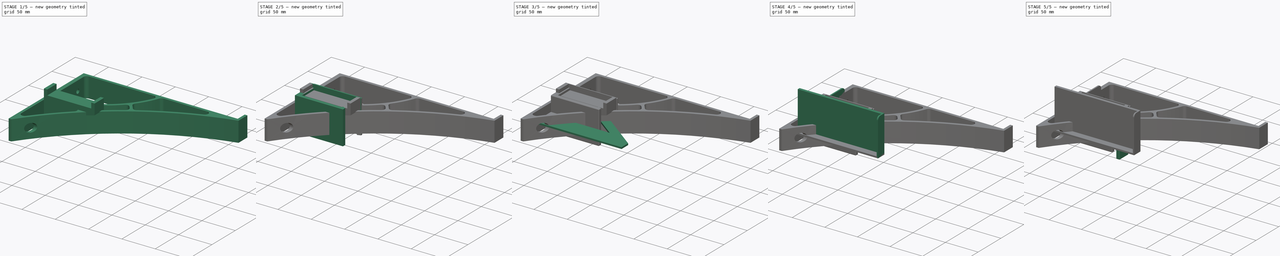
[diagram: build sequence overview — one tinted view per stage of 5, left to right]
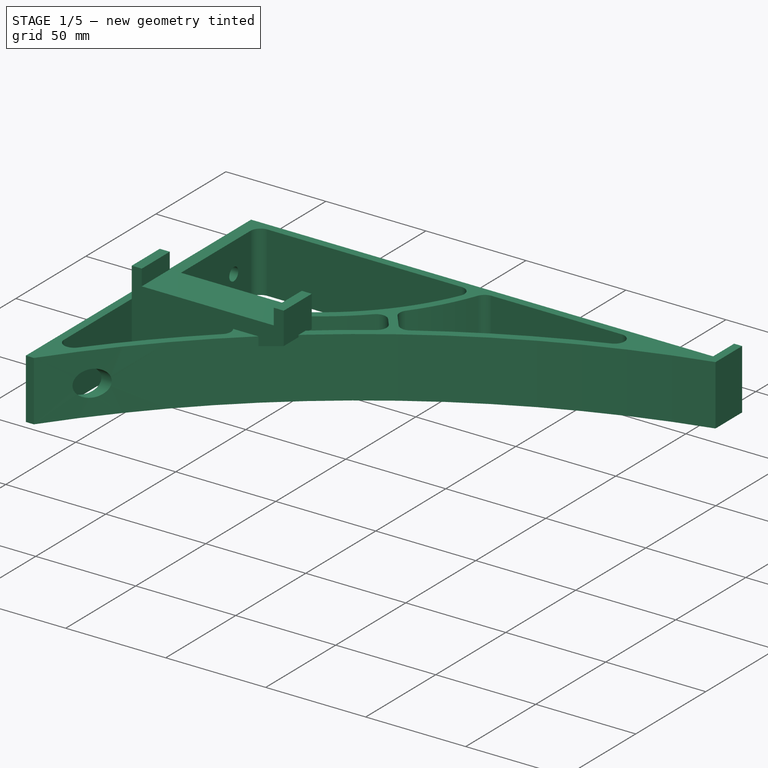
[diagram: stage 1 of 5 — iso view after this stage's code; geometry added in this stage tinted green]
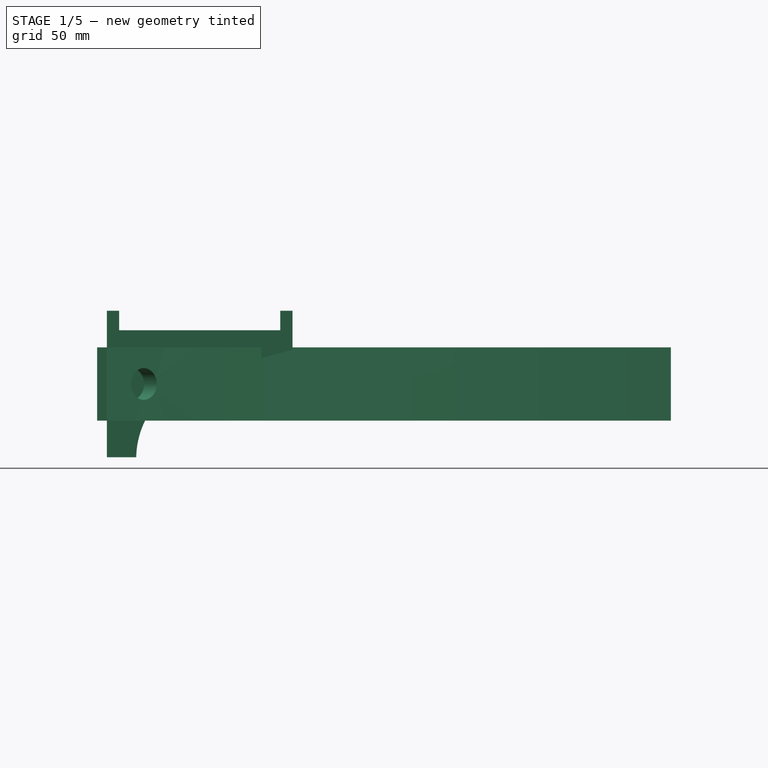
[diagram: stage 1 of 5 — front view after this stage's code; geometry added in this stage tinted green]
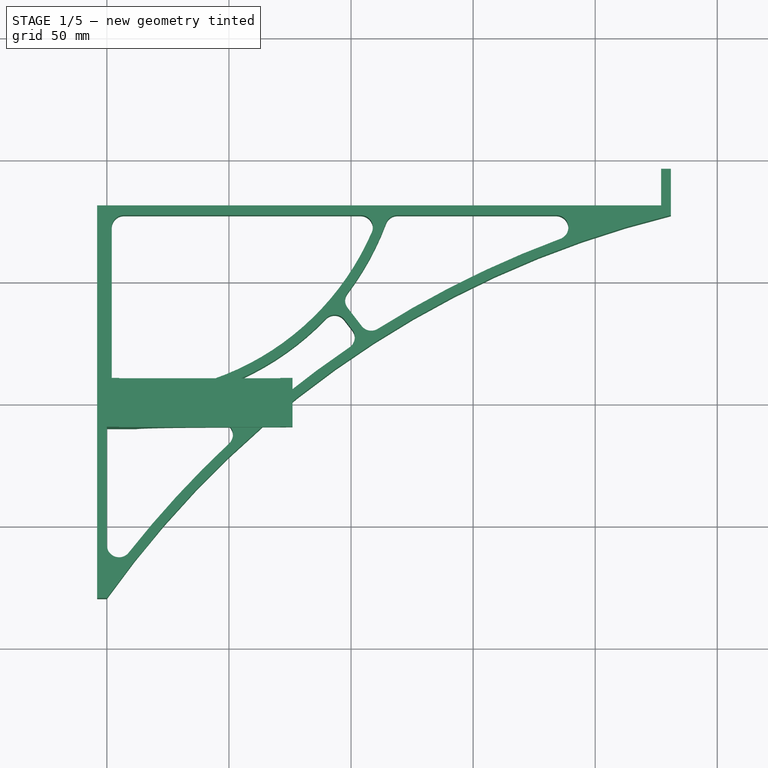
[diagram: stage 1 of 5 — top view after this stage's code; geometry added in this stage tinted green]
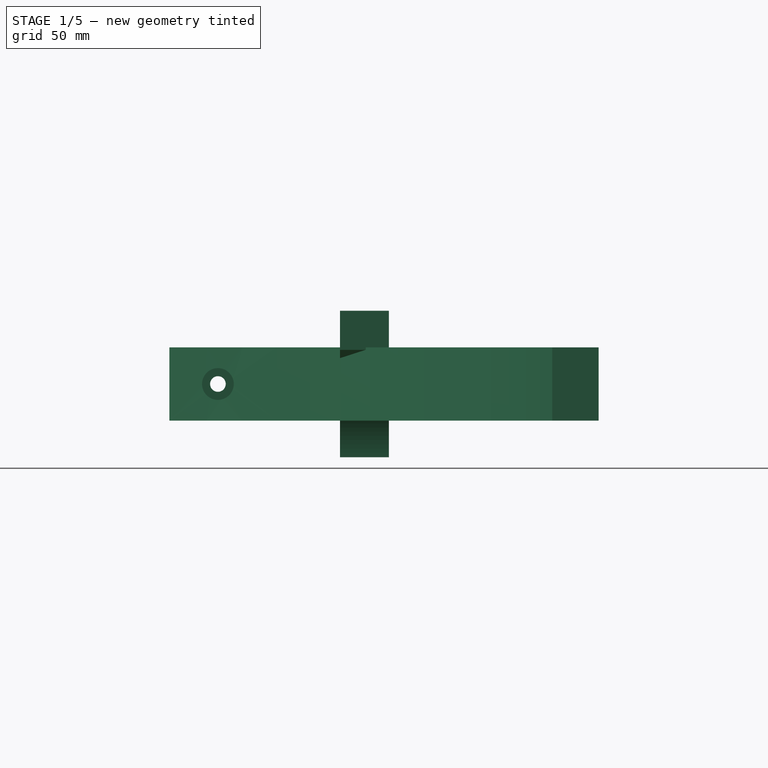
[diagram: stage 1 of 5 — right view after this stage's code; geometry added in this stage tinted green]
FCSTD DOCUMENT  (FreeCAD 0.19R24366 (Git))
Label: RouterHolder
License: All rights reserved
LicenseURL: http://en.wikipedia.org/wiki/All_rights_reserved
objects: Sketcher::SketchObject×18, PartDesign::Pocket×9, PartDesign::Pad×8, PartDesign::Body×6, PartDesign::Fillet×5, App::Part×3, PartDesign::Chamfer×1, PartDesign::FeatureBase×1, PartDesign::ShapeBinder×1, PartDesign::Plane×1
note: 73 computed .brp shape members not serialized (recipe doc carries the construction recipe); baked Part::Feature solids carry a one-line shape summary decoded from their .brp

FEATURE [Sketcher::SketchObject] Sketch
  FullyConstrained = true
  MapMode = 5
  Placement = pos=(0,0,0) rot=(1,0,0;1.5708rad)
  Support = -> [XZ_Plane001]
  sketch-geometry (11):
    g0: LineSegment StartX=5 StartY=30 StartZ=0 EndX=5 EndY=22 EndZ=0
    g1: LineSegment StartX=5 StartY=22 StartZ=0 EndX=71 EndY=22 EndZ=0
    g2: LineSegment StartX=71 StartY=22 StartZ=0 EndX=71 EndY=30 EndZ=0
    g3: LineSegment StartX=71 StartY=30 StartZ=0 EndX=76 EndY=30 EndZ=0
    g4: LineSegment StartX=76 StartY=30 StartZ=0 EndX=76 EndY=14 EndZ=0
    g5: LineSegment StartX=12 StartY=-30 StartZ=0 EndX=0 EndY=-30 EndZ=0
    g6: LineSegment StartX=0 StartY=-30 StartZ=0 EndX=0 EndY=30 EndZ=0
    g7: LineSegment StartX=0 StartY=30 StartZ=0 EndX=5 EndY=30 EndZ=0
    g8: LineSegment StartX=5 StartY=30 StartZ=0 EndX=71 EndY=30 EndZ=0
    g9: ArcOfCircle CenterX=47.9917 CenterY=-30.7748 CenterZ=0 NormalX=0 NormalY=0 NormalZ=1 AngleXU=0 Radius=36 StartAngle=1.8326 EndAngle=3.12007
    g10: LineSegment StartX=38.6742 StartY=3.99858 StartZ=0 EndX=76 EndY=14 EndZ=0
  constraints (31):
    c: Vertical(g0)
    c: Coincident(g0,g1)
    c: Horizontal(g1)
    c: Coincident(g1,g2)
    c: Vertical(g2)
    c: Coincident(g2,g3)
    c: Horizontal(g3)
    c: Coincident(g3,g4)
    c: Vertical(g4)
    c: Coincident(g5,g6)
    c: Vertical(g6)
    c: Coincident(g6,g7)
    c: Coincident(g7,g0)
    c: Horizontal(g7)
    c: DistanceX(g0,g2) = 66  'RouterThickness'
    c: DistanceX(g7,g7) = 5  'WallDistance'
    c: Coincident(g8,g0)
    c: Coincident(g8,g2)
    c: Horizontal(g8)
    c: Coincident(g9,g5)
    c: Coincident(g10,g4)
    c: Tangent(g9,g10) = 1.5708
    c: Horizontal(g5)
    c: DistanceX(g5,g5) = 12
    c: Radius(g9) = 36
    c: DistanceY(g6,g6) = 60
    c: DistanceY(g0,g0) = 8
    c: DistanceY(g4,g1) = 8
    c: Equal(g3,g7)
    c: Angle(g1,g10) = 0.261799
    c: Symmetric(g6,g5,g-1)  '__ANCHOR__'
FEATURE [PartDesign::Pad] Pad
  AllowMultiFace = false
  Direction = (1,1,1)
  Length = 20
  Length2 = 100
  Midplane = true
  Placement = pos=(0,0,0) rot=(1,0,0;1.5708rad)
  Profile = -> Sketch
  Type = 0
FEATURE [PartDesign::Body] Body005  label="RouterHolderBottomRear"
  BaseFeature = -> Pocket001
  Group = -> [Clone,ShapeBinder,DatumPlane,Sketch014,Pad006]
  Origin = -> Origin008
  Placement = pos=(0,-45,0) rot=(0,0,1;0rad)
  Tip = -> Pad006
FEATURE [App::Part] Part  label="RouterHolder"
  Group = -> [Body,Body001,Body004,Body005]
  Origin = -> Origin
FEATURE [Sketcher::SketchObject] Sketch015
  FullyConstrained = true
  MapMode = 5
  Support = -> [XY_Plane006]
  sketch-geometry (39):
    g0: LineSegment StartX=-5.68e-14 StartY=-73.0555 StartZ=0 EndX=-5.68e-14 EndY=8.527e-13 EndZ=0
    g1: LineSegment StartX=2 StartY=76.9445 StartZ=0 EndX=111.265 EndY=76.9445 EndZ=0
    g2: LineSegment StartX=231 StartY=76.9445 StartZ=0 EndX=231 EndY=80.9445 EndZ=0
    g3: LineSegment StartX=227 StartY=80.9445 StartZ=0 EndX=-4 EndY=80.9445 EndZ=0
    g4: LineSegment StartX=-4 StartY=80.9445 StartZ=0 EndX=-4 EndY=-79.8945 EndZ=0
    g5: LineSegment StartX=-4 StartY=-79.8945 StartZ=0 EndX=-5.68e-14 EndY=-79.8945 EndZ=0
    g6: ArcOfCircle CenterX=326.059 CenterY=-311.596 CenterZ=0 NormalX=0 NormalY=0 NormalZ=1 AngleXU=0 Radius=400 StartAngle=1.81074 EndAngle=2.52378
    g7: ArcOfCircle CenterX=326.059 CenterY=-311.596 CenterZ=0 NormalX=0 NormalY=0 NormalZ=1 AngleXU=0 Radius=404 StartAngle=1.84833 EndAngle=2.14353
    g8: LineSegment StartX=215.369 StartY=76.9445 StartZ=0 EndX=231 EndY=76.9445 EndZ=0
    g9: LineSegment StartX=-5.68e-14 StartY=-73.0555 StartZ=0 EndX=-5.68e-14 EndY=-79.8945 EndZ=0
    g10: LineSegment StartX=115.5 StartY=76.9445 StartZ=0 EndX=215.369 EndY=76.9445 EndZ=0
    g11: LineSegment StartX=2 StartY=3.88897 StartZ=0 EndX=2 EndY=76.9445 EndZ=0
    g12: LineSegment StartX=-5.68e-14 StartY=-73.0555 StartZ=0 EndX=3.22831 EndY=-75.4173 EndZ=0
    g13: LineSegment StartX=93.6024 StartY=38.9117 StartZ=0 EndX=103.756 EndY=25.7427 EndZ=0
    g14: LineSegment StartX=96.2347 StartY=42.0486 StartZ=0 EndX=107.117 EndY=27.9339 EndZ=0
    g15: LineSegment StartX=43.6929 StartY=5.60939 StartZ=0 EndX=56.3509 EndY=-10.8078 EndZ=0
    g16: LineSegment StartX=39.6242 StartY=4.33554 StartZ=0 EndX=53.3768 EndY=-13.5013 EndZ=0
    g17: LineSegment StartX=43.6929 StartY=5.60939 StartZ=0 EndX=40.5252 EndY=3.16698 EndZ=0
    g18: LineSegment StartX=93.6024 StartY=38.9117 StartZ=0 EndX=96.7702 EndY=41.3541 EndZ=0
    g19: ArcOfCircle CenterX=326.059 CenterY=-311.596 CenterZ=0 NormalX=0 NormalY=0 NormalZ=1 AngleXU=0 Radius=404 StartAngle=2.3117 EndAngle=2.50998
    g20: ArcOfCircle CenterX=326.059 CenterY=-311.596 CenterZ=0 NormalX=0 NormalY=0 NormalZ=1 AngleXU=0 Radius=404 StartAngle=2.15347 EndAngle=2.30177
    g21: ArcOfCircle CenterX=326.059 CenterY=-311.596 CenterZ=0 NormalX=0 NormalY=0 NormalZ=1 AngleXU=0 Radius=404 StartAngle=2.30177 EndAngle=2.3117
    g22: ArcOfCircle CenterX=326.059 CenterY=-311.596 CenterZ=0 NormalX=0 NormalY=0 NormalZ=1 AngleXU=0 Radius=404 StartAngle=2.14353 EndAngle=2.15347
    g23: ArcOfCircle CenterX=7.60358 CenterY=113.746 CenterZ=0 NormalX=0 NormalY=0 NormalZ=1 AngleXU=0 Radius=114 StartAngle=4.64564 EndAngle=4.9971
    g24: ArcOfCircle CenterX=7.60358 CenterY=113.746 CenterZ=0 NormalX=0 NormalY=0 NormalZ=1 AngleXU=0 Radius=114 StartAngle=4.9971 EndAngle=5.0345
    g25: ArcOfCircle CenterX=7.60358 CenterY=113.746 CenterZ=0 NormalX=0 NormalY=0 NormalZ=1 AngleXU=0 Radius=114 StartAngle=5.0345 EndAngle=5.56709
    g26: ArcOfCircle CenterX=7.60358 CenterY=113.746 CenterZ=0 NormalX=0 NormalY=0 NormalZ=1 AngleXU=0 Radius=114 StartAngle=5.56709 EndAngle=5.60301
    g27: ArcOfCircle CenterX=7.60358 CenterY=113.746 CenterZ=0 NormalX=0 NormalY=0 NormalZ=1 AngleXU=0 Radius=114 StartAngle=5.60301 EndAngle=5.95448
    g28: LineSegment StartX=111.265 StartY=76.9445 StartZ=0 EndX=115.5 EndY=76.9445 EndZ=0
    g29: ArcOfCircle CenterX=7.60358 CenterY=113.746 CenterZ=0 NormalX=0 NormalY=0 NormalZ=1 AngleXU=0 Radius=110 StartAngle=4.66143 EndAngle=5.94205
    g30: LineSegment StartX=93.6024 StartY=38.9117 StartZ=0 EndX=90.5849 EndY=41.5374 EndZ=0
    g31: LineSegment StartX=227 StartY=80.9445 StartZ=0 EndX=231 EndY=80.9445 EndZ=0
    g32: LineSegment StartX=227 StartY=80.9445 StartZ=0 EndX=227 EndY=95.9445 EndZ=0
    g33: LineSegment StartX=227 StartY=95.9445 StartZ=0 EndX=231 EndY=95.9445 EndZ=0
    g34: LineSegment StartX=231 StartY=95.9445 StartZ=0 EndX=231 EndY=80.9445 EndZ=0
    g35: LineSegment StartX=81.818 StartY=5.17889 StartZ=0 EndX=326.059 EndY=-311.596 EndZ=0
    g36: LineSegment StartX=-5.68e-14 StartY=8.527e-13 StartZ=0 EndX=39.6242 EndY=4.33554 EndZ=0
    g37: LineSegment StartX=115.5 StartY=76.9445 StartZ=0 EndX=96.2347 EndY=42.0486 EndZ=0
    g38: LineSegment StartX=2 StartY=76.9445 StartZ=0 EndX=0 EndY=76.9445 EndZ=0
  constraints (106):
    c: Vertical(g0)
    c: Coincident(g11,g1)
    c: Horizontal(g1)
    c: Vertical(g2)
    c: Horizontal(g3)
    c: Vertical(g4)
    c: Horizontal(g5)
    c: Equal(g5,g2)
    c: Coincident(g6,g5)
    c: Coincident(g6,g2)
    c: Radius(g6) = 400
    c: Coincident(g7,g6)
    c: Coincident(g10,g7)
    c: Coincident(g0,g19)
    c: Coincident(g8,g10)
    c: Coincident(g8,g2)
    c: Coincident(g9,g0)
    c: Coincident(g9,g5)
    c: Vertical(g9)
    c: Tangent(g1,g10)
    c: Coincident(g3,g4)
    c: Coincident(g12,g0)
    c: PointOnObject(g12,g6)
    c: PointOnObject(g6,g12)
    c: Parallel(g13,g14)
    c: Parallel(g16,g15)
    c: PointOnObject(g17,g16)
    c: Perpendicular(g16,g17)
    c: Equal(g17,g12)
    c: Distance(g17,g13) = 60
    c: Coincident(g15,g17)
    c: PointOnObject(g20,g15)
    c: Coincident(g19,g16)
    c: Coincident(g7,g19)
    c: Coincident(g7,g14)
    c: Coincident(g20,g13)
    c: Coincident(g7,g20)
    c: Coincident(g21,g6)
    c: Coincident(g21,g16)
    c: Coincident(g21,g15)
    c: Coincident(g22,g6)
    c: Coincident(g22,g13)
    c: Coincident(g22,g7)
    c: Coincident(g23,g16)
    c: Coincident(g24,g23)
    c: Coincident(g24,g15)
    c: Coincident(g24,g16)
    c: Coincident(g25,g13)
    c: Coincident(g23,g25)
    c: Coincident(g26,g23)
    c: Coincident(g26,g13)
    c: Coincident(g26,g14)
    c: Coincident(g27,g14)
    c: Coincident(g27,g10)
    c: Coincident(g0,g23)
    c: Coincident(g28,g1)
    c: Coincident(g28,g10)
    c: Equal(g12,g5)
    c: Coincident(g29,g23)
    c: Coincident(g29,g11)
    c: Coincident(g29,g1)
    c: Coincident(g30,g13)
    c: PointOnObject(g30,g29)
    c: PointOnObject(g23,g30)
    c: Equal(g12,g30)
    c: Coincident(g15,g25)
    c: Coincident(g23,g27)
    c: DistanceX(g3,g3) = 231
    c: Coincident(g5,g4)
    c: Coincident(g31,g3)
    c: Horizontal(g31)
    c: Coincident(g2,g31)
    c: Equal(g31,g2)
    c: Coincident(g3,g32)
    c: Vertical(g32)
    c: Coincident(g32,g33)
    c: Horizontal(g33)
    c: Coincident(g33,g34)
    c: Coincident(g34,g2)
    c: Vertical(g34)
    c: DistanceY(g2,g2) = 4  'Thickness'
    c: DistanceY(g34,g34) = 15
    c: Parallel(g15,g13)
    c: PointOnObject(g35,g6)
    c: Coincident(g35,g6)
    c: Parallel(g35,g15)
    c: Symmetric(g15,g13,g35)
    c: Radius(g29) = 110
    c: Coincident(g36,g0)
    c: Coincident(g36,g16)
    c: Coincident(g37,g10)
    c: Coincident(g37,g14)
    c: Equal(g37,g36)
    c: DistanceY(g0,g1) = 150  'InnerHeight'
    c: Coincident(g0,g-1)  '__ANCHOR__'
    c: Equal(g0,g11)
    c: DistanceX(g3,g1) = 6
    c: Vertical(g11)
    c: Coincident(g38,g1)
    c: PointOnObject(g38,g0)
    c: Horizontal(g38)
    c: Symmetric(g38,g2,g10)
    c: Coincident(g18,g13)
    c: PointOnObject(g18,g14)
    c: Perpendicular(g14,g18)
    c: Equal(g18,g17)
FEATURE [PartDesign::Pad] Pad007
  AllowMultiFace = false
  Direction = (1,1,1)
  Length = 30
  Length2 = 100
  Midplane = true
  Profile = -> Sketch015
  Type = 0
FEATURE [Sketcher::SketchObject] Sketch016
  AttachmentOffset = pos=(0,0,5) rot=(0,0,1;0rad)
  FullyConstrained = true
  MapMode = 5
  Placement = pos=(5,-1.1e-15,1.1e-15) rot=(0.57735,0.57735,0.57735;2.0944rad)
  Support = -> [YZ_Plane006]
  expr: Constraints[4] = Sketch015.Constraints.InnerHeight - 30mm
  sketch-geometry (2):
    g0: Circle CenterX=-60 CenterY=0 CenterZ=0 NormalX=0 NormalY=0 NormalZ=1 AngleXU=0 Radius=3.2
    g1: Circle CenterX=60 CenterY=0 CenterZ=0 NormalX=0 NormalY=0 NormalZ=1 AngleXU=0 Radius=3.2
  constraints (5):
    c: PointOnObject(g0,g-1)
    c: Equal(g1,g0)
    c: Radius(g0) = 3.2
    c: Symmetric(g0,g1,g-1)
    c: DistanceX(g0,g1) = 120
FEATURE [Sketcher::SketchObject] Sketch017
  ExternalGeometry = -> [Sketch016]
  FullyConstrained = true
  MapMode = 5
  Placement = pos=(0,0,0) rot=(0.57735,0.57735,0.57735;2.0944rad)
  Support = -> [YZ_Plane006]
  sketch-geometry (1):
    g0: Circle CenterX=-60 CenterY=0 CenterZ=0 NormalX=0 NormalY=0 NormalZ=1 AngleXU=0 Radius=6.5
  constraints (2):
    c: Coincident(g0,g-3)
    c: Radius(g0) = 6.5
FEATURE [PartDesign::Fillet] Fillet004
  Base = -> Pad007 [Edge26,Edge29,Edge41,Edge25,Edge47,Edge58,Edge50,Edge38,Edge59,Edge34,Edge46,Edge53,Edge65,Edge62,Edge35]
  BaseFeature = -> Pad007
  Radius = 5
  SupportTransform = false
FEATURE [PartDesign::Pocket] Pocket007
  AllowMultiFace = false
  BaseFeature = -> Fillet004
  Length = 5
  Length2 = 100
  Profile = -> Sketch016
  Type = 1
FEATURE [PartDesign::Pocket] Pocket008
  AllowMultiFace = false
  BaseFeature = -> Pocket007
  Length = 5
  Length2 = 100
  Profile = -> Sketch017
  Refine = true
  Reversed = true
  Type = 1
FEATURE [PartDesign::Body] Body003  label="HPHolder"
  Group = -> [Sketch015,Pad007,Fillet004,Sketch016,Pocket007,Sketch017,Pocket008]
  Origin = -> Origin006
  Tip = -> Pocket008
FEATURE [App::Part] Part002  label="HPHolder_"
  Group = -> [Body003]
  Origin = -> Origin005
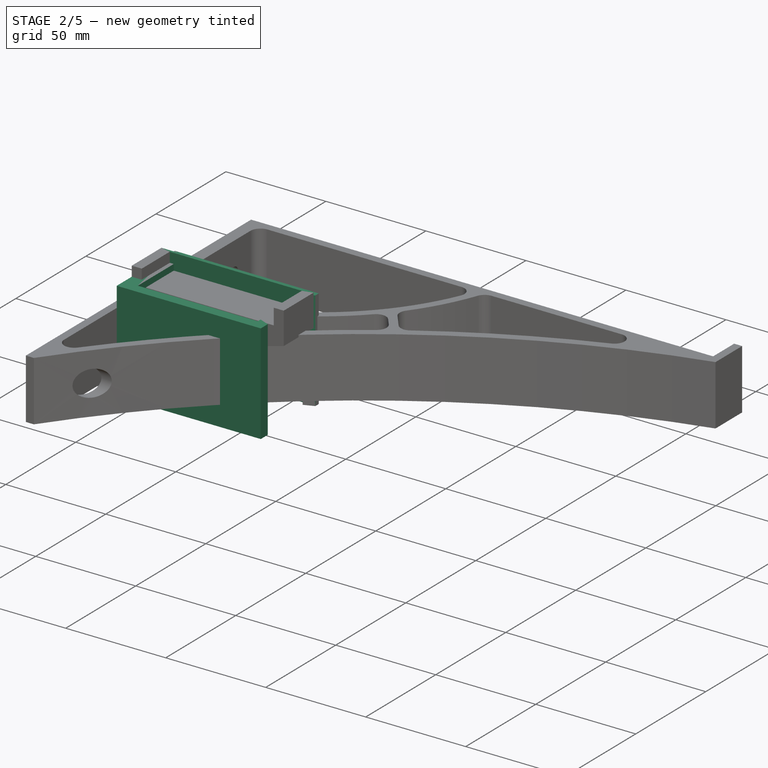
[diagram: stage 2 of 5 — iso view after this stage's code; geometry added in this stage tinted green]
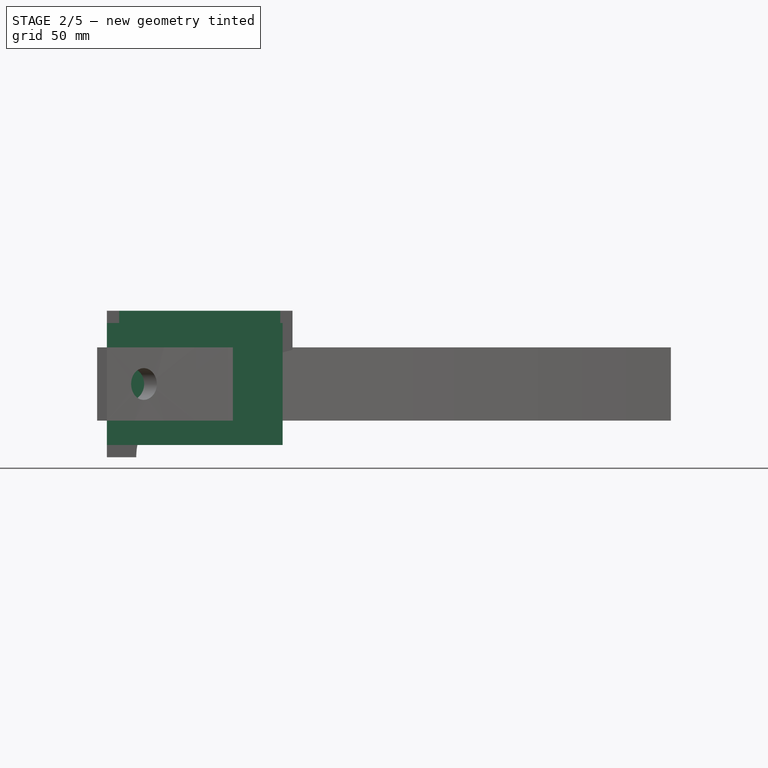
[diagram: stage 2 of 5 — front view after this stage's code; geometry added in this stage tinted green]
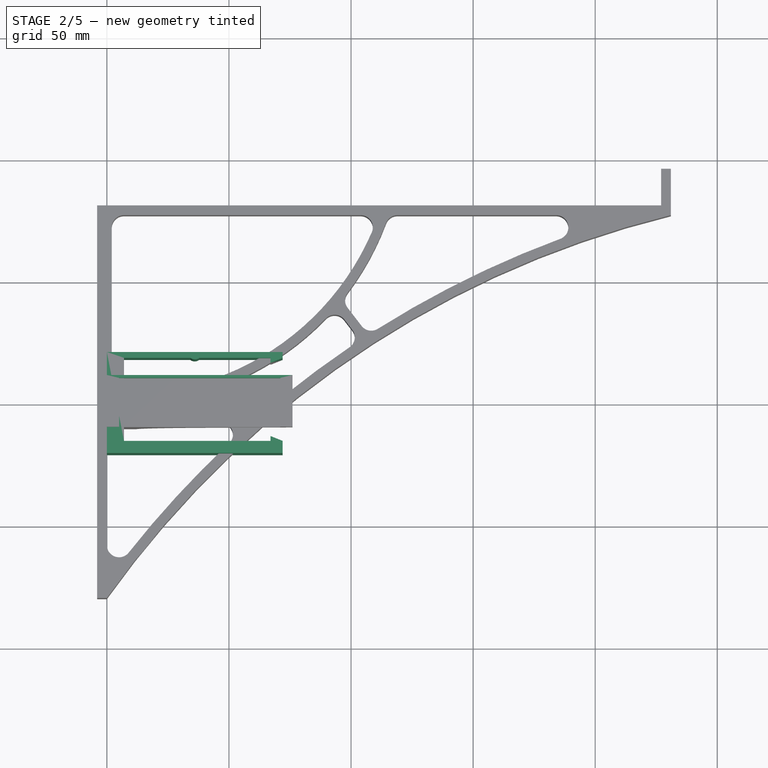
[diagram: stage 2 of 5 — top view after this stage's code; geometry added in this stage tinted green]
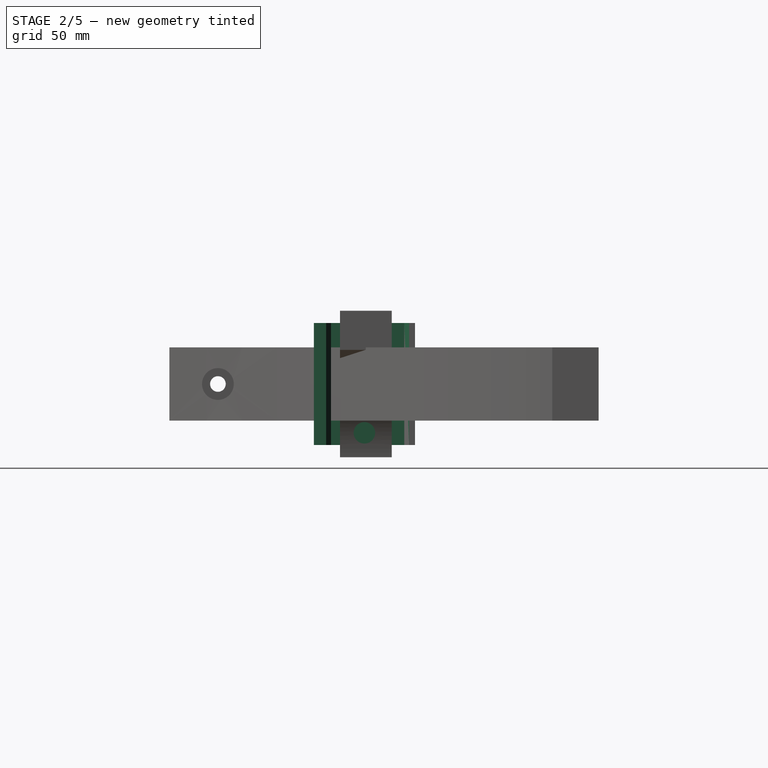
[diagram: stage 2 of 5 — right view after this stage's code; geometry added in this stage tinted green]
FEATURE [Sketcher::SketchObject] Sketch001
  ExternalGeometry = -> [Sketch]
  FullyConstrained = true
  MapMode = 5
  Placement = pos=(0,0,0) rot=(0.57735,0.57735,0.57735;2.0944rad)
  Support = -> [YZ_Plane001]
  sketch-geometry (3):
    g0: Circle CenterX=8.9e-15 CenterY=3.99858 CenterZ=0 NormalX=0 NormalY=0 NormalZ=1 AngleXU=0 Radius=2.2
    g1: LineSegment StartX=6.7e-15 StartY=-30 StartZ=0 EndX=4.4e-15 EndY=-19.9986 EndZ=0
    g2: Circle CenterX=4.4e-15 CenterY=-19.9986 CenterZ=0 NormalX=0 NormalY=0 NormalZ=1 AngleXU=0 Radius=2.2
  constraints (8):
    c: Radius(g0) = 2.2  'ScrewHole'
    c: Coincident(g0,g-3)
    c: Coincident(g1,g-4)
    c: PointOnObject(g1,g-4)
    c: Equal(g1,g-3)
    c: Coincident(g2,g1)
    c: Equal(g2,g0)
    c: DistanceY(g2,g0) = 23.9972
FEATURE [PartDesign::Pocket] Pocket
  AllowMultiFace = false
  BaseFeature = -> Pad
  Length = 5
  Length2 = 100
  Placement = pos=(0,0,0) rot=(1,0,0;1.5708rad)
  Profile = -> Sketch001
  Reversed = true
  Type = 1
FEATURE [Sketcher::SketchObject] Sketch002
  AttachmentOffset = pos=(0,0,4) rot=(0,0,1;0rad)
  ExternalGeometry = -> [Sketch001]
  FullyConstrained = true
  MapMode = 5
  Placement = pos=(4,-9e-16,9e-16) rot=(0.57735,0.57735,0.57735;2.0944rad)
  Support = -> [YZ_Plane001]
  sketch-geometry (2):
    g0: Circle CenterX=8.9e-15 CenterY=3.99858 CenterZ=0 NormalX=0 NormalY=0 NormalZ=1 AngleXU=0 Radius=4.4
    g1: Circle CenterX=0 CenterY=-19.9986 CenterZ=0 NormalX=0 NormalY=0 NormalZ=1 AngleXU=0 Radius=4.4
  constraints (4):
    c: Radius(g0) = 4.4  'HeadHole'
    c: Equal(g1,g0)
    c: Coincident(g0,g-3)
    c: Coincident(g1,g-4)
FEATURE [PartDesign::Pocket] Pocket001
  AllowMultiFace = false
  BaseFeature = -> Pocket
  Length = 5
  Length2 = 100
  Placement = pos=(0,0,0) rot=(1,0,0;1.5708rad)
  Profile = -> Sketch002
  Reversed = true
  Type = 1
FEATURE [PartDesign::Body] Body002
  Group = -> [Sketch006,Sketch007,Pad002,Sketch008,Pad003,Sketch009,Pad004,Chamfer,Sketch010,Pocket004,Fillet002]
  Origin = -> Origin004
  Tip = -> Pad004
FEATURE [App::Part] Part001  label="NASHolder"
  Group = -> [Body002]
  Origin = -> Origin003
FEATURE [Sketcher::SketchObject] Sketch011
  FullyConstrained = true
  MapMode = 5
  Support = -> [XY_Plane007]
  sketch-geometry (18):
    g0: LineSegment StartX=7 StartY=18.3 StartZ=0 EndX=34.2 EndY=18.3 EndZ=0
    g1: LineSegment StartX=67 StartY=-15.7 StartZ=0 EndX=7 EndY=-15.7 EndZ=0
    g2: LineSegment StartX=7 StartY=-15.7 StartZ=0 EndX=7 EndY=18.3 EndZ=0
    g3: LineSegment StartX=0 StartY=20.7 StartZ=0 EndX=72 EndY=20.7 EndZ=0
    g4: LineSegment StartX=72 StartY=20.7 StartZ=0 EndX=72 EndY=18.3 EndZ=0
    g5: LineSegment StartX=72 StartY=-20.7 StartZ=0 EndX=0 EndY=-20.7 EndZ=0
    g6: LineSegment StartX=0 StartY=-20.7 StartZ=0 EndX=0 EndY=20.7 EndZ=0
    g7: LineSegment StartX=72 StartY=-15.7 StartZ=0 EndX=72 EndY=-20.7 EndZ=0
    g8: LineSegment StartX=67 StartY=18.3 StartZ=0 EndX=72 EndY=18.3 EndZ=0
    g9: LineSegment StartX=72 StartY=-15.7 StartZ=0 EndX=72 EndY=18.3 EndZ=0
    g10: LineSegment StartX=67 StartY=-15.7 StartZ=0 EndX=72 EndY=-15.7 EndZ=0
    g11: LineSegment StartX=67 StartY=-15.7 StartZ=0 EndX=67 EndY=-13.7 EndZ=0
    g12: LineSegment StartX=67 StartY=-13.7 StartZ=0 EndX=72 EndY=-15.7 EndZ=0
    g13: LineSegment StartX=67 StartY=18.3 StartZ=0 EndX=67 EndY=16.3 EndZ=0
    g14: LineSegment StartX=67 StartY=16.3 StartZ=0 EndX=72 EndY=18.3 EndZ=0
    g15: ArcOfCircle CenterX=36 CenterY=20.7 CenterZ=0 NormalX=0 NormalY=0 NormalZ=1 AngleXU=0 Radius=3 StartAngle=4.06889 EndAngle=5.35589
    g16: LineSegment StartX=7 StartY=17.7 StartZ=0 EndX=67 EndY=17.7 EndZ=0
    g17: LineSegment StartX=37.8 StartY=18.3 StartZ=0 EndX=67 EndY=18.3 EndZ=0
  constraints (50):
    c: Coincident(g1,g2)
    c: Coincident(g2,g0)
    c: Horizontal(g0)
    c: Horizontal(g1)
    c: Vertical(g2)
    c: Coincident(g6,g3)
    c: Horizontal(g3)
    c: Horizontal(g5)
    c: Vertical(g4)
    c: Vertical(g6)
    c: DistanceY(g0,g3) = 2.4
    c: DistanceX(g3,g0) = 7  'WallMountThickness'
    c: Coincident(g5,g6)
    c: Coincident(g4,g3)
    c: Coincident(g7,g5)
    c: Vertical(g7)
    c: DistanceX(g0,g17) = 60
    c: Coincident(g8,g17)
    c: Coincident(g8,g4)
    c: Horizontal(g8)
    c: DistanceX(g8,g8) = 5
    c: Coincident(g9,g7)
    c: Coincident(g9,g4)
    c: Vertical(g9)
    c: Coincident(g10,g1)
    c: Coincident(g10,g7)
    c: Horizontal(g10)
    c: Coincident(g1,g11)
    c: Vertical(g11)
    c: Coincident(g11,g12)
    c: Coincident(g12,g7)
    c: Coincident(g17,g13)
    c: Vertical(g13)
    c: Coincident(g13,g14)
    c: Coincident(g14,g4)
    c: Equal(g13,g11)
    c: DistanceY(g13,g13) = 2
    c: DistanceY(g9,g9) = 34
    c: Symmetric(g3,g5,g-1)
    c: PointOnObject(g16,g2)
    c: PointOnObject(g16,g13)
    c: Horizontal(g16)
    c: Tangent(g16,g15)
    c: DistanceY(g16,g0) = 0.6
    c: Coincident(g0,g15)
    c: Coincident(g17,g15)
    c: Tangent(g0,g17)
    c: Symmetric(g3,g3,g15)
    c: Equal(g8,g10)
    c: DistanceY(g5,g1) = 5
FEATURE [PartDesign::Pad] Pad005
  AllowMultiFace = false
  Direction = (1,1,1)
  Length = 50
  Length2 = 100
  Midplane = true
  Profile = -> Sketch011
  Type = 0
FEATURE [PartDesign::Body] Body004  label="RouterPSUHolder"
  Group = -> [Sketch011,Pad005,Sketch012,Pocket005,Sketch013,Pocket006,Fillet003]
  Origin = -> Origin007
  Tip = -> Fillet003
FEATURE [PartDesign::FeatureBase] Clone
  BaseFeature = -> Pocket001
  Placement = pos=(0,0,0) rot=(1,0,0;1.5708rad)
FEATURE [PartDesign::ShapeBinder] ShapeBinder
  Placement = pos=(0,0,0) rot=(1,0,0;1.5708rad)
  Support = -> [Sketch]
  TraceSupport = false
FEATURE [PartDesign::Plane] DatumPlane
  Length = 116.569
  MapMode = 5
  Placement = pos=(0,10,2.2e-15) rot=(-1,0,0;1.5708rad)
  ResizeMode = 0
  Support = -> [Clone]
  Width = 75.5692
FEATURE [Sketcher::SketchObject] Sketch014
  ExternalGeometry = -> [ShapeBinder]
  FullyConstrained = true
  MapMode = 5
  Placement = pos=(0,10,2.2e-15) rot=(-1,0,0;1.5708rad)
  Support = -> [DatumPlane]
  sketch-geometry (6):
    g0: ArcOfCircle CenterX=47.9917 CenterY=30.7748 CenterZ=0 NormalX=0 NormalY=0 NormalZ=1 AngleXU=0 Radius=36 StartAngle=3.16312 EndAngle=4.45059
    g1: LineSegment StartX=38.6742 StartY=-3.99858 StartZ=0 EndX=76 EndY=-14 EndZ=0
    g2: LineSegment StartX=76 StartY=-14 StartZ=0 EndX=76 EndY=-30 EndZ=0
    g3: LineSegment StartX=76 StartY=-30 StartZ=0 EndX=0 EndY=-30 EndZ=0
    g4: LineSegment StartX=0 StartY=-30 StartZ=0 EndX=0 EndY=30 EndZ=0
    g5: LineSegment StartX=0 StartY=30 StartZ=0 EndX=12 EndY=30 EndZ=0
  constraints (13):
    c: Coincident(g0,g-3)
    c: Coincident(g0,g-3)
    c: Coincident(g0,g-3)
    c: Coincident(g0,g1)
    c: Coincident(g1,g-5)
    c: Coincident(g1,g2)
    c: Coincident(g2,g-5)
    c: Coincident(g3,g-4)
    c: Coincident(g3,g4)
    c: Coincident(g4,g-4)
    c: Coincident(g4,g5)
    c: Coincident(g5,g0)
    c: Coincident(g3,g2)
FEATURE [PartDesign::Pad] Pad006
  AllowMultiFace = false
  BaseFeature = -> Clone
  Direction = (1,1,1)
  Length = 1.2
  Length2 = 100
  Placement = pos=(0,0,0) rot=(1,0,0;1.5708rad)
  Profile = -> Sketch014
  Refine = true
  Type = 0
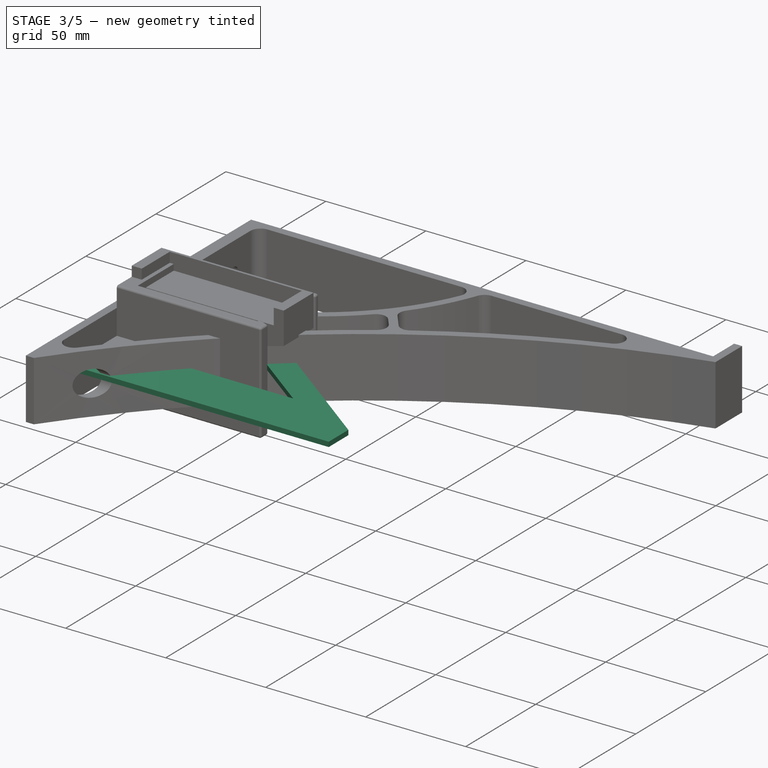
[diagram: stage 3 of 5 — iso view after this stage's code; geometry added in this stage tinted green]
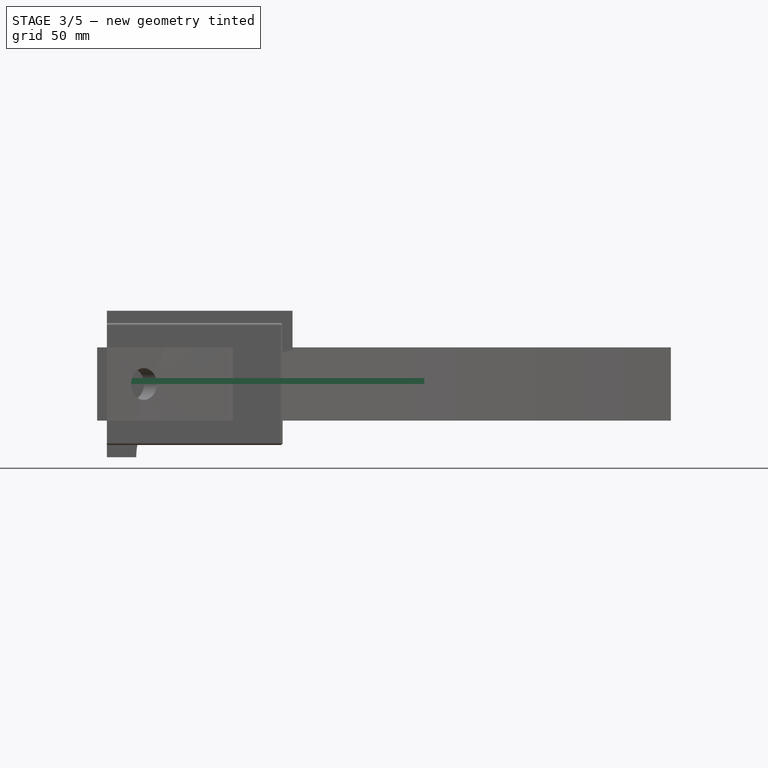
[diagram: stage 3 of 5 — front view after this stage's code; geometry added in this stage tinted green]
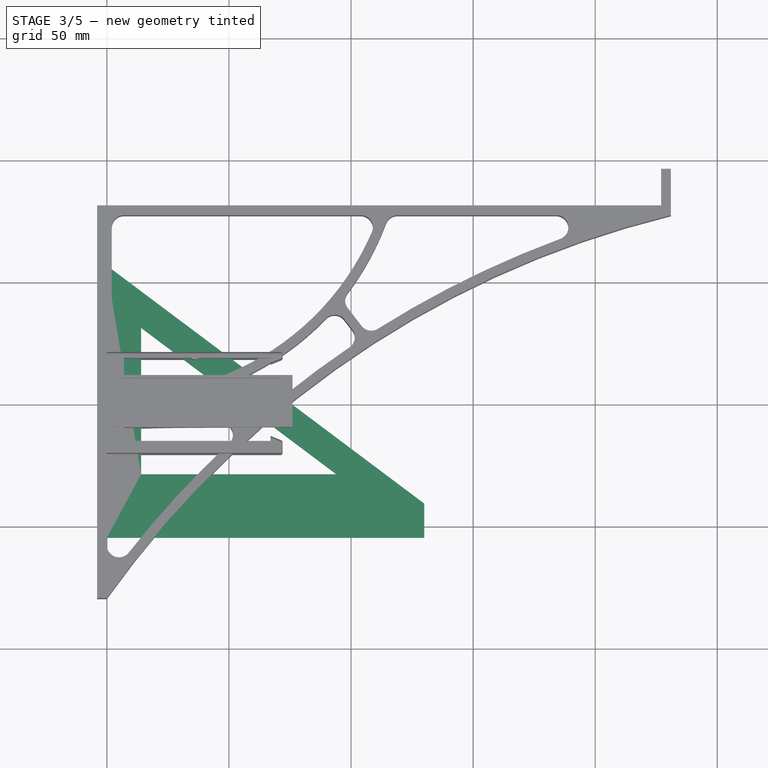
[diagram: stage 3 of 5 — top view after this stage's code; geometry added in this stage tinted green]
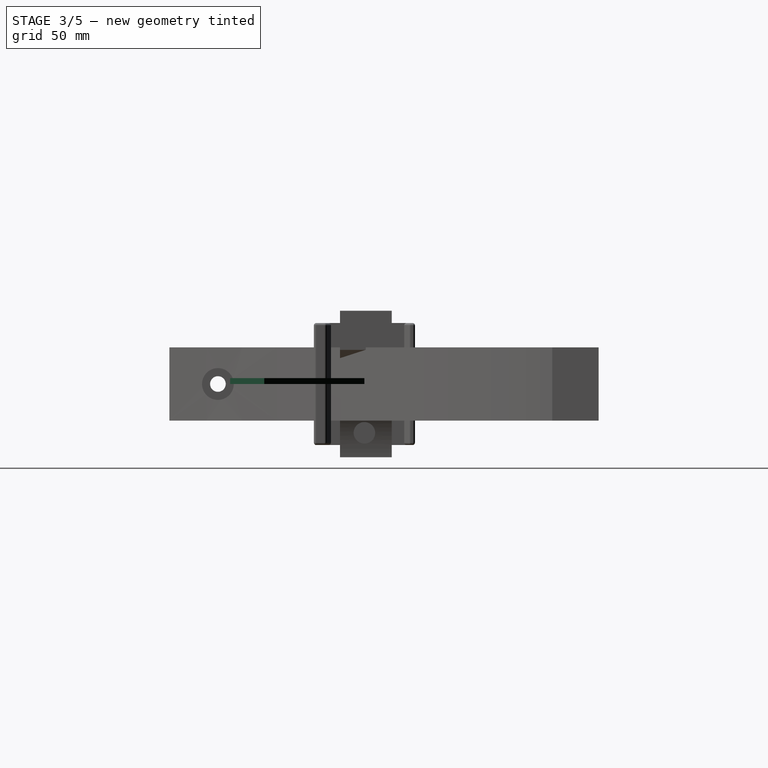
[diagram: stage 3 of 5 — right view after this stage's code; geometry added in this stage tinted green]
FEATURE [PartDesign::Body] Body001  label="RouterHolderTop"
  Group = -> [Sketch003,Pad001,Sketch004,Pocket002,Sketch005,Pocket003,Fillet001]
  Origin = -> Origin002
  Placement = pos=(0,15,0) rot=(0,0,1;0rad)
  Tip = -> Fillet001
FEATURE [Sketcher::SketchObject] Sketch006  label="NAS_Template"
  FullyConstrained = true
  MapMode = 5
  Support = -> [XY_Plane004]
  sketch-geometry (20):
    g0: LineSegment StartX=2 StartY=55 StartZ=0 EndX=2 EndY=-41 EndZ=0
    g1: LineSegment StartX=2 StartY=-41 StartZ=0 EndX=130 EndY=-41 EndZ=0
    g2: LineSegment StartX=130 StartY=-41 StartZ=0 EndX=2 EndY=55 EndZ=0
    g3: LineSegment StartX=2 StartY=55 StartZ=0 EndX=0 EndY=55 EndZ=0
    g4: LineSegment StartX=0 StartY=55 StartZ=0 EndX=0 EndY=-45 EndZ=0
    g5: LineSegment StartX=0 StartY=-45 StartZ=0 EndX=128 EndY=-45 EndZ=0
    g6: LineSegment StartX=130 StartY=-45 StartZ=0 EndX=130 EndY=-41 EndZ=0
    g7: LineSegment StartX=14 StartY=31 StartZ=0 EndX=14 EndY=-29 EndZ=0
    g8: LineSegment StartX=14 StartY=-29 StartZ=0 EndX=94 EndY=-29 EndZ=0
    g9: LineSegment StartX=94 StartY=-29 StartZ=0 EndX=14 EndY=31 EndZ=0
    g10: LineSegment StartX=14 StartY=31 StartZ=0 EndX=21.2 EndY=40.6 EndZ=0
    g11: LineSegment StartX=94 StartY=-29 StartZ=0 EndX=101.2 EndY=-19.4 EndZ=0
    g12: LineSegment StartX=14 StartY=31 StartZ=0 EndX=2 EndY=31 EndZ=0
    g13: LineSegment StartX=94 StartY=-29 StartZ=0 EndX=94 EndY=-41 EndZ=0
    g14: LineSegment StartX=0 StartY=-45 StartZ=0 EndX=0 EndY=-55 EndZ=0
    g15: LineSegment StartX=0 StartY=-55 StartZ=0 EndX=128 EndY=-55 EndZ=0
    g16: LineSegment StartX=130 StartY=-55 StartZ=0 EndX=130 EndY=-45 EndZ=0
    g17: LineSegment StartX=128 StartY=-45 StartZ=0 EndX=128 EndY=-55 EndZ=0
    g18: LineSegment StartX=128 StartY=-45 StartZ=0 EndX=130 EndY=-45 EndZ=0
    g19: LineSegment StartX=128 StartY=-55 StartZ=0 EndX=130 EndY=-55 EndZ=0
  constraints (56):
    c: Vertical(g0)
    c: Coincident(g0,g1)
    c: Horizontal(g1)
    c: Coincident(g1,g2)
    c: Coincident(g2,g0)
    c: Coincident(g0,g3)
    c: Coincident(g3,g4)
    c: Vertical(g4)
    c: Coincident(g4,g5)
    c: Horizontal(g5)
    c: Coincident(g6,g1)
    c: Vertical(g6)
    c: Horizontal(g3)
    c: Vertical(g7)
    c: Coincident(g7,g8)
    c: Horizontal(g8)
    c: Coincident(g8,g9)
    c: Coincident(g9,g7)
    c: Coincident(g10,g7)
    c: PointOnObject(g10,g2)
    c: Coincident(g11,g8)
    c: PointOnObject(g11,g2)
    c: Perpendicular(g2,g11)
    c: Perpendicular(g2,g10)
    c: Equal(g10,g11)
    c: Coincident(g12,g7)
    c: PointOnObject(g12,g0)
    c: Coincident(g13,g8)
    c: PointOnObject(g13,g1)
    c: Vertical(g13)
    c: Equal(g11,g13)
    c: Equal(g13,g12)
    c: Horizontal(g12)
    c: Coincident(g4,g14)
    c: Vertical(g14)
    c: Coincident(g14,g15)
    c: Horizontal(g15)
    c: DistanceX(g3,g3) = 2
    c: DistanceY(g6,g6) = 4
    c: DistanceX(g0,g1) = 128
    c: Distance(g11) = 12
    c: DistanceY(g4,g3) = 100
    c: DistanceY(g14,g14) = 10
    c: Symmetric(g14,g3,g-1)  '__ANCHOR__'
    c: Vertical(g16)
    c: Coincident(g6,g16)
    c: Coincident(g17,g5)
    c: Vertical(g17)
    c: Coincident(g18,g5)
    c: Coincident(g18,g6)
    c: Horizontal(g18)
    c: Coincident(g15,g17)
    c: Coincident(g19,g15)
    c: Coincident(g19,g16)
    c: Horizontal(g19)
    c: Equal(g18,g3)
FEATURE [Sketcher::SketchObject] Sketch007
  ExternalGeometry = -> [Sketch006]
  FullyConstrained = true
  MapMode = 5
  Support = -> [XY_Plane004]
  sketch-geometry (8):
    g0: LineSegment StartX=0 StartY=55 StartZ=0 EndX=0 EndY=-55 EndZ=0
    g1: LineSegment StartX=0 StartY=-55 StartZ=0 EndX=130 EndY=-55 EndZ=0
    g2: LineSegment StartX=130 StartY=-55 StartZ=0 EndX=130 EndY=-41 EndZ=0
    g3: LineSegment StartX=130 StartY=-41 StartZ=0 EndX=2 EndY=55 EndZ=0
    g4: LineSegment StartX=2 StartY=55 StartZ=0 EndX=0 EndY=55 EndZ=0
    g5: LineSegment StartX=14 StartY=31 StartZ=0 EndX=14 EndY=-29 EndZ=0
    g6: LineSegment StartX=14 StartY=-29 StartZ=0 EndX=94 EndY=-29 EndZ=0
    g7: LineSegment StartX=94 StartY=-29 StartZ=0 EndX=14 EndY=31 EndZ=0
  constraints (16):
    c: Coincident(g-3,g0)
    c: Coincident(g0,g-4)
    c: Coincident(g0,g1)
    c: Coincident(g1,g-6)
    c: Coincident(g1,g2)
    c: Coincident(g2,g-5)
    c: Coincident(g2,g3)
    c: Coincident(g3,g-3)
    c: Coincident(g3,g4)
    c: Coincident(g4,g0)
    c: Coincident(g-7,g5)
    c: Coincident(g5,g-8)
    c: Coincident(g5,g6)
    c: Coincident(g6,g-8)
    c: Coincident(g6,g7)
    c: Coincident(g7,g5)
FEATURE [PartDesign::Pad] Pad002
  AllowMultiFace = false
  Direction = (1,1,1)
  Length = 2.4
  Length2 = 100
  Profile = -> Sketch007
  Type = 0
FEATURE [Sketcher::SketchObject] Sketch012
  FullyConstrained = true
  MapMode = 5
  Placement = pos=(0,0,0) rot=(0.57735,0.57735,0.57735;2.0944rad)
  Support = -> [YZ_Plane007]
  expr: Constraints[1] = Sketch001.Constraints.ScrewHole
  sketch-geometry (1):
    g0: Circle CenterX=0 CenterY=0 CenterZ=0 NormalX=0 NormalY=0 NormalZ=1 AngleXU=0 Radius=2.2
  constraints (2):
    c: Coincident(g0,g-1)
    c: Radius(g0) = 2.2
FEATURE [PartDesign::Pocket] Pocket005
  AllowMultiFace = false
  BaseFeature = -> Pad005
  Length = 5
  Length2 = 100
  Profile = -> Sketch012
  Reversed = true
  Type = 1
FEATURE [Sketcher::SketchObject] Sketch013
  AttachmentOffset = pos=(0,0,4) rot=(0,0,1;0rad)
  FullyConstrained = true
  MapMode = 5
  Placement = pos=(4,-9e-16,9e-16) rot=(0.57735,0.57735,0.57735;2.0944rad)
  Support = -> [YZ_Plane007]
  expr: .AttachmentOffset.Base.z = Sketch011.Constraints.WallMountThickness - 3mm
  expr: Constraints[1] = Sketch002.Constraints.HeadHole
  sketch-geometry (1):
    g0: Circle CenterX=0 CenterY=0 CenterZ=0 NormalX=0 NormalY=0 NormalZ=1 AngleXU=0 Radius=4.4
  constraints (2):
    c: Coincident(g0,g-1)
    c: Radius(g0) = 4.4
FEATURE [PartDesign::Pocket] Pocket006
  AllowMultiFace = false
  BaseFeature = -> Pocket005
  Length = 5
  Length2 = 100
  Profile = -> Sketch013
  Reversed = true
  Type = 1
FEATURE [PartDesign::Fillet] Fillet003
  Base = -> Pocket006 [Edge18,Edge42,Edge29,Edge31,Edge46,Edge20,Edge34,Edge41,Edge17,Edge21,Edge22,Edge32,Edge16,Edge27,Edge28,Edge33]
  BaseFeature = -> Pocket006
  Radius = 1
  SupportTransform = false
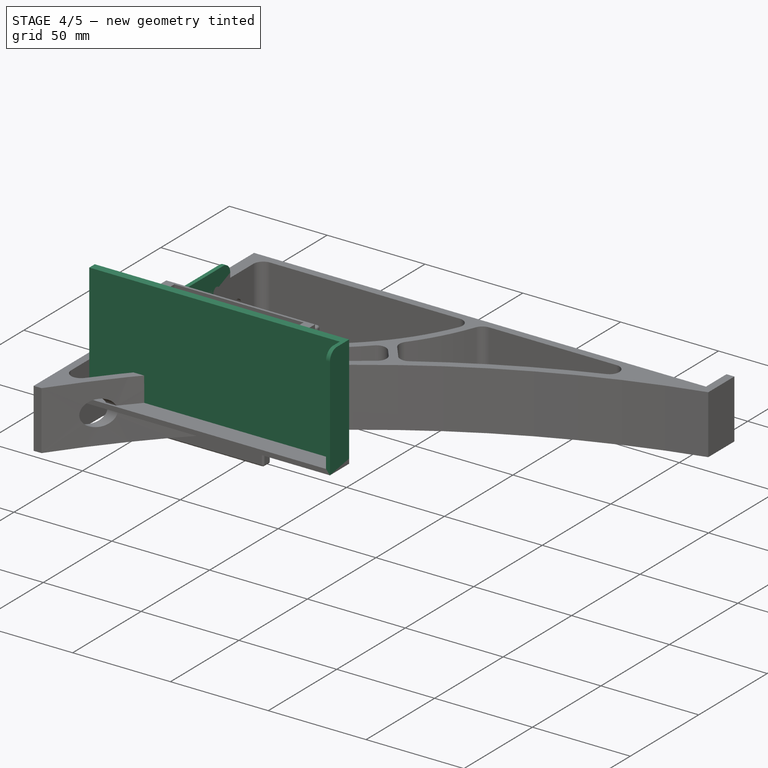
[diagram: stage 4 of 5 — iso view after this stage's code; geometry added in this stage tinted green]
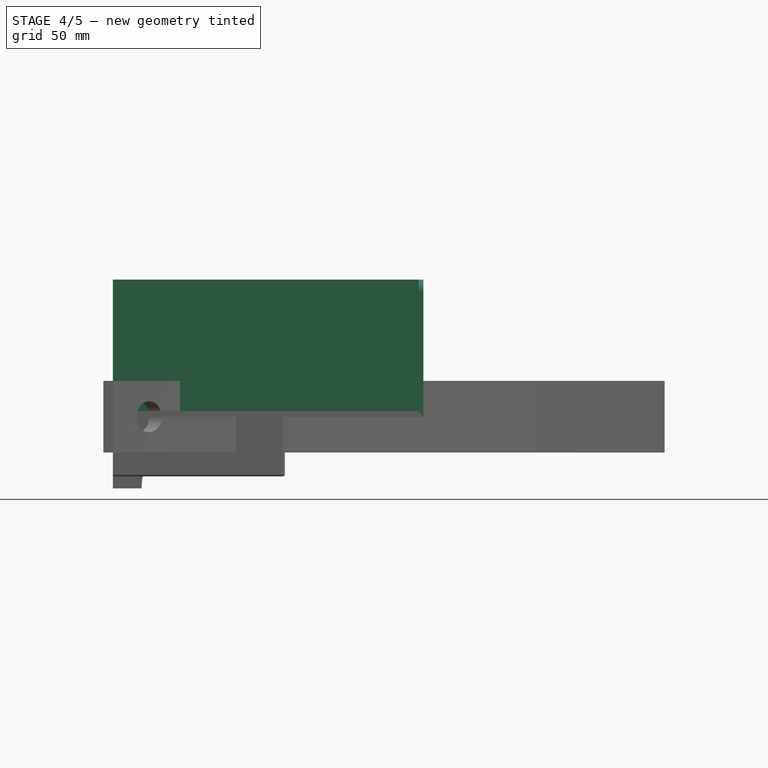
[diagram: stage 4 of 5 — front view after this stage's code; geometry added in this stage tinted green]
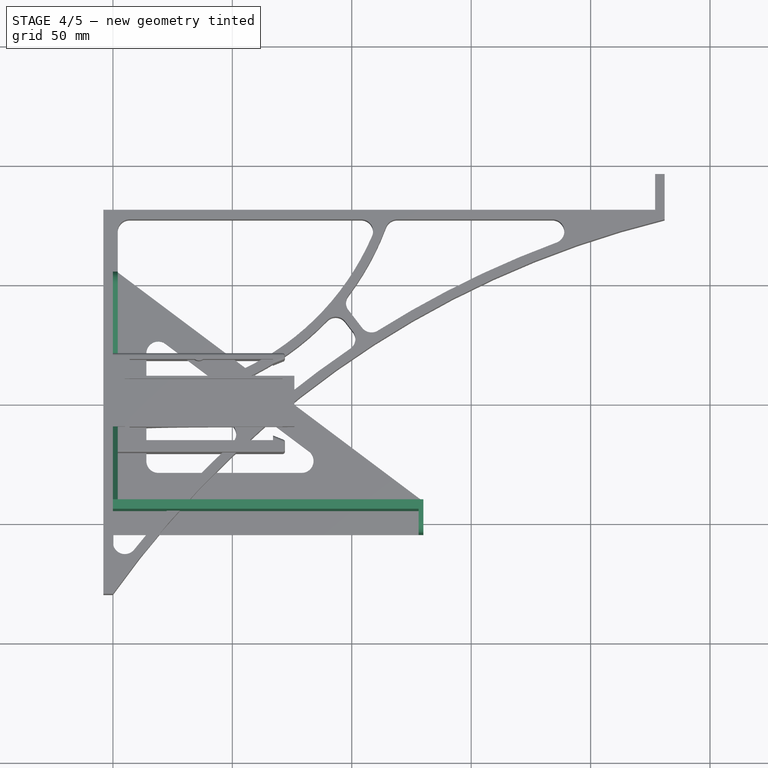
[diagram: stage 4 of 5 — top view after this stage's code; geometry added in this stage tinted green]
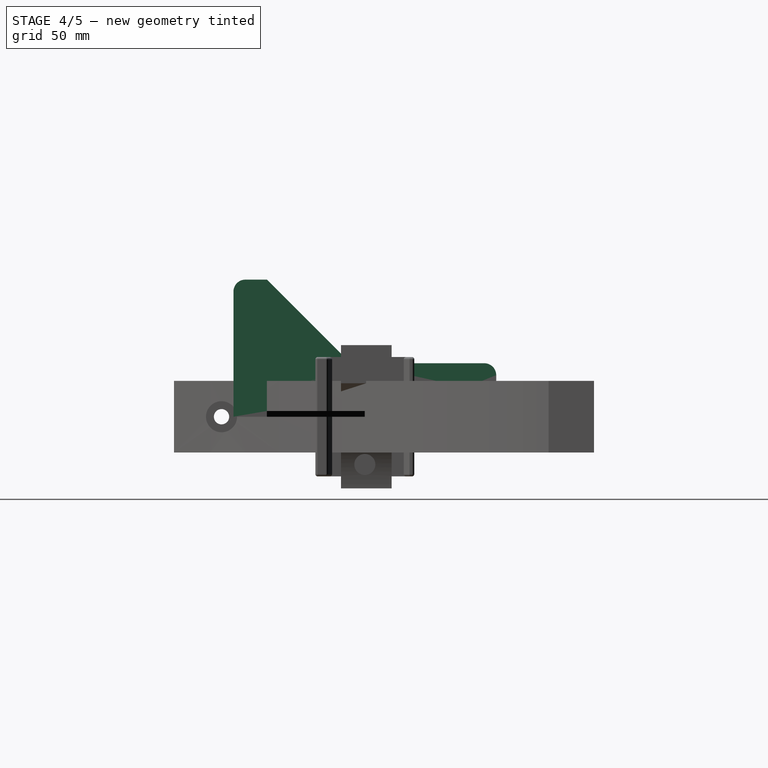
[diagram: stage 4 of 5 — right view after this stage's code; geometry added in this stage tinted green]
FEATURE [Sketcher::SketchObject] Sketch008
  AttachmentOffset = pos=(0,0,2.4) rot=(0,0,1;0rad)
  ExternalGeometry = -> [Sketch006]
  FullyConstrained = true
  MapMode = 5
  Placement = pos=(0,0,2.4) rot=(0,0,1;0rad)
  Support = -> [XY_Plane004]
  expr: .AttachmentOffset.Base.z = Sketch007.Placement.Base.z + Pad002.Length
  sketch-geometry (8):
    g0: LineSegment StartX=2 StartY=55 StartZ=0 EndX=0 EndY=55 EndZ=0
    g1: LineSegment StartX=0 StartY=55 StartZ=0 EndX=0 EndY=-45 EndZ=0
    g2: LineSegment StartX=0 StartY=-45 StartZ=0 EndX=128 EndY=-45 EndZ=0
    g3: LineSegment StartX=128 StartY=-45 StartZ=0 EndX=128 EndY=-55 EndZ=0
    g4: LineSegment StartX=128 StartY=-55 StartZ=0 EndX=130 EndY=-55 EndZ=0
    g5: LineSegment StartX=130 StartY=-55 StartZ=0 EndX=130 EndY=-41 EndZ=0
    g6: LineSegment StartX=130 StartY=-41 StartZ=0 EndX=2 EndY=-41 EndZ=0
    g7: LineSegment StartX=2 StartY=-41 StartZ=0 EndX=2 EndY=55 EndZ=0
  constraints (16):
    c: Coincident(g-3,g0)
    c: Coincident(g0,g-3)
    c: Coincident(g0,g1)
    c: Coincident(g1,g-5)
    c: Coincident(g1,g2)
    c: Coincident(g2,g-5)
    c: Coincident(g2,g3)
    c: Coincident(g3,g-6)
    c: Coincident(g3,g4)
    c: Coincident(g4,g-6)
    c: Coincident(g4,g5)
    c: Coincident(g5,g-4)
    c: Coincident(g5,g6)
    c: Coincident(g6,g-4)
    c: Coincident(g6,g7)
    c: Coincident(g7,g0)
FEATURE [PartDesign::Pad] Pad003
  AllowMultiFace = false
  BaseFeature = -> Pad002
  Direction = (1,1,1)
  Length = 20
  Length2 = 100
  Profile = -> Sketch008
  Type = 0
FEATURE [Sketcher::SketchObject] Sketch009
  AttachmentOffset = pos=(0,0,22.4) rot=(0,0,1;0rad)
  ExternalGeometry = -> [Sketch006]
  FullyConstrained = true
  MapMode = 5
  Placement = pos=(0,0,22.4) rot=(0,0,1;0rad)
  Support = -> [XY_Plane004]
  expr: .AttachmentOffset.Base.z = Sketch008.Placement.Base.z + Pad003.Length
  sketch-geometry (6):
    g0: LineSegment StartX=0 StartY=-45 StartZ=0 EndX=128 EndY=-45 EndZ=0
    g1: LineSegment StartX=128 StartY=-45 StartZ=0 EndX=128 EndY=-55 EndZ=0
    g2: LineSegment StartX=128 StartY=-55 StartZ=0 EndX=130 EndY=-55 EndZ=0
    g3: LineSegment StartX=130 StartY=-55 StartZ=0 EndX=130 EndY=-41 EndZ=0
    g4: LineSegment StartX=130 StartY=-41 StartZ=0 EndX=0 EndY=-41 EndZ=0
    g5: LineSegment StartX=0 StartY=-41 StartZ=0 EndX=0 EndY=-45 EndZ=0
  constraints (13):
    c: Coincident(g-6,g0)
    c: Coincident(g0,g-3)
    c: Coincident(g0,g1)
    c: Coincident(g1,g-4)
    c: Coincident(g1,g2)
    c: Coincident(g2,g-4)
    c: Coincident(g2,g3)
    c: Coincident(g3,g-5)
    c: Coincident(g3,g4)
    c: Horizontal(g4)
    c: Coincident(g4,g5)
    c: Coincident(g5,g0)
    c: Vertical(g5)
FEATURE [PartDesign::Pad] Pad004
  AllowMultiFace = false
  BaseFeature = -> Pad003
  Direction = (1,1,1)
  Length = 35
  Length2 = 100
  Profile = -> Sketch009
  Refine = true
  Type = 0
FEATURE [PartDesign::Chamfer] Chamfer
  Angle = 45
  Base = -> Pad004 [Edge23]
  BaseFeature = -> Pad004
  ChamferType = 0
  FlipDirection = false
  Size = 34.99
  Size2 = 1
  SupportTransform = false
  expr: Size = Pad004.Length - 0.01mm
FEATURE [Sketcher::SketchObject] Sketch010
  ExternalGeometry = -> [Sketch006]
  FullyConstrained = true
  MapMode = 5
  Placement = pos=(0,0,0) rot=(0.57735,0.57735,0.57735;2.0944rad)
  Support = -> [YZ_Plane004]
  expr: Constraints[23] = Sketch001.Constraints.ScrewHole
  expr: Constraints[19] = Pad003.Length
  expr: Constraints[18] = Pad002.Length
  sketch-geometry (9):
    g0: LineSegment StartX=-41 StartY=22.4 StartZ=0 EndX=55 EndY=22.4 EndZ=0
    g1: LineSegment StartX=55 StartY=22.4 StartZ=0 EndX=55 EndY=2.4 EndZ=0
    g2: LineSegment StartX=55 StartY=2.4 StartZ=0 EndX=-41 EndY=2.4 EndZ=0
    g3: LineSegment StartX=-41 StartY=2.4 StartZ=0 EndX=-41 EndY=22.4 EndZ=0
    g4: LineSegment StartX=-41 StartY=12.4 StartZ=0 EndX=-31 EndY=12.4 EndZ=0
    g5: LineSegment StartX=-31 StartY=12.4 StartZ=0 EndX=45 EndY=12.4 EndZ=0
    g6: LineSegment StartX=45 StartY=12.4 StartZ=0 EndX=55 EndY=12.4 EndZ=0
    g7: Circle CenterX=-31 CenterY=12.4 CenterZ=0 NormalX=0 NormalY=0 NormalZ=1 AngleXU=0 Radius=2.2
    g8: Circle CenterX=45 CenterY=12.4 CenterZ=0 NormalX=0 NormalY=0 NormalZ=1 AngleXU=0 Radius=2.2
  constraints (26):
    c: Coincident(g0,g1)
    c: Coincident(g1,g2)
    c: Coincident(g2,g3)
    c: Coincident(g3,g0)
    c: Horizontal(g0)
    c: Horizontal(g2)
    c: Vertical(g1)
    c: Vertical(g3)
    c: PointOnObject(g-3,g3)
    c: PointOnObject(g-3,g1)
    c: Horizontal(g4)
    c: Coincident(g4,g5)
    c: Horizontal(g5)
    c: Coincident(g5,g6)
    c: PointOnObject(g6,g1)
    c: Horizontal(g6)
    c: Equal(g6,g4)
    c: Symmetric(g0,g2,g4)
    c: DistanceY(g-3,g1) = 2.4
    c: DistanceY(g1,g1) = 20
    c: Coincident(g7,g4)
    c: Coincident(g8,g5)
    c: Equal(g8,g7)
    c: Radius(g8) = 2.2
    c: DistanceX(g8,g6) = 10
    c: DistanceX(g7,g8) = 76
FEATURE [PartDesign::Pocket] Pocket004
  AllowMultiFace = false
  BaseFeature = -> Chamfer
  Length = 5
  Length2 = 100
  Profile = -> Sketch010
  Reversed = true
  Type = 1
FEATURE [PartDesign::Fillet] Fillet002
  Base = -> Pocket004 [Edge48,Edge47,Edge46,Edge10,Edge9,Edge43]
  BaseFeature = -> Pocket004
  Radius = 5
  SupportTransform = false
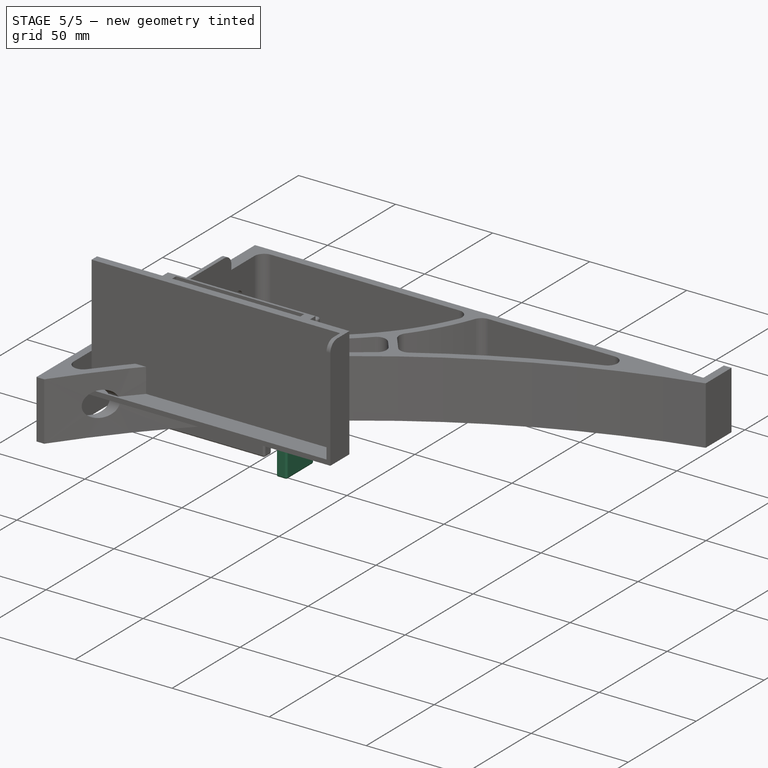
[diagram: stage 5 of 5 — iso view after this stage's code; geometry added in this stage tinted green]
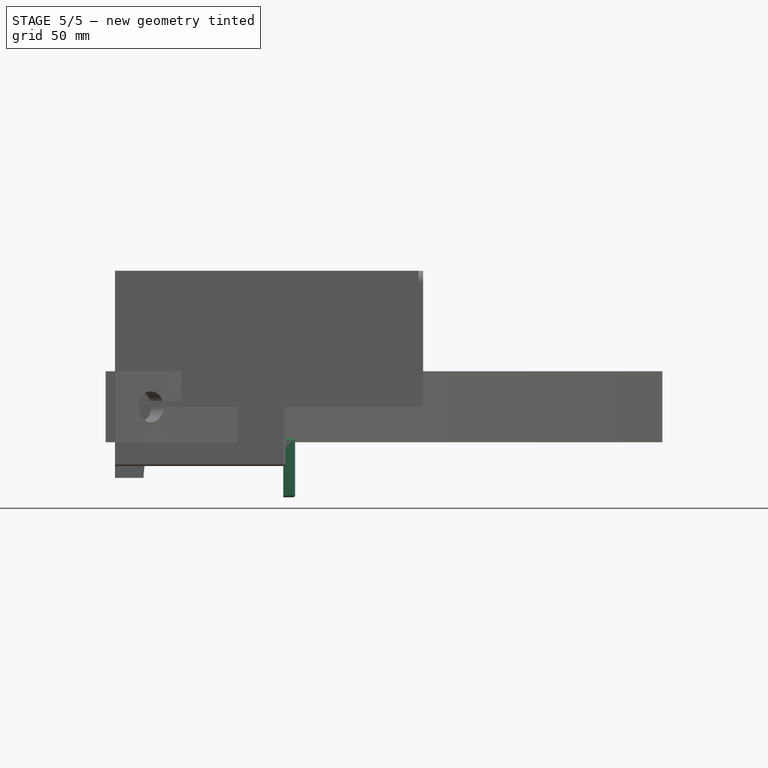
[diagram: stage 5 of 5 — front view after this stage's code; geometry added in this stage tinted green]
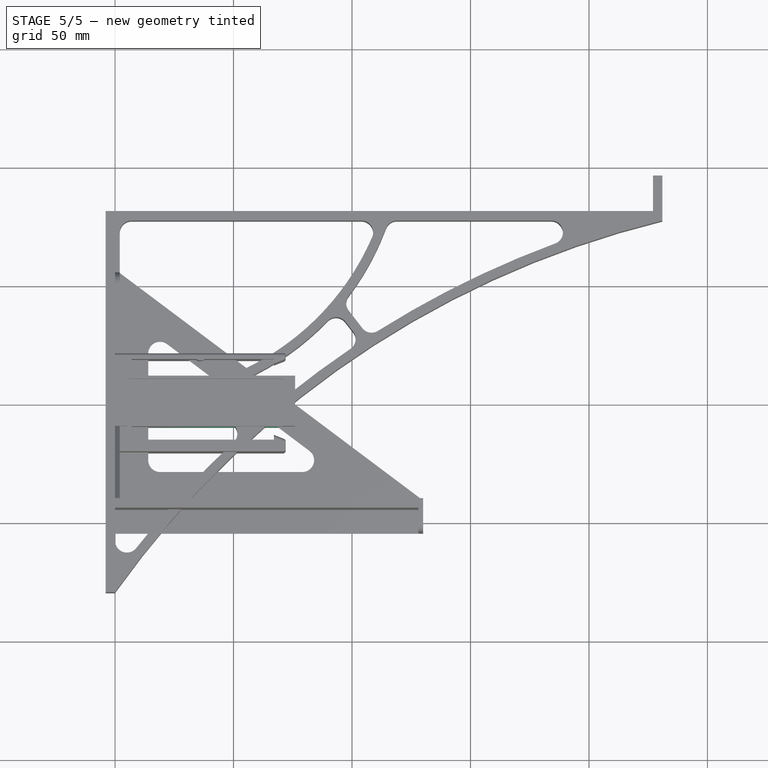
[diagram: stage 5 of 5 — top view after this stage's code; geometry added in this stage tinted green]
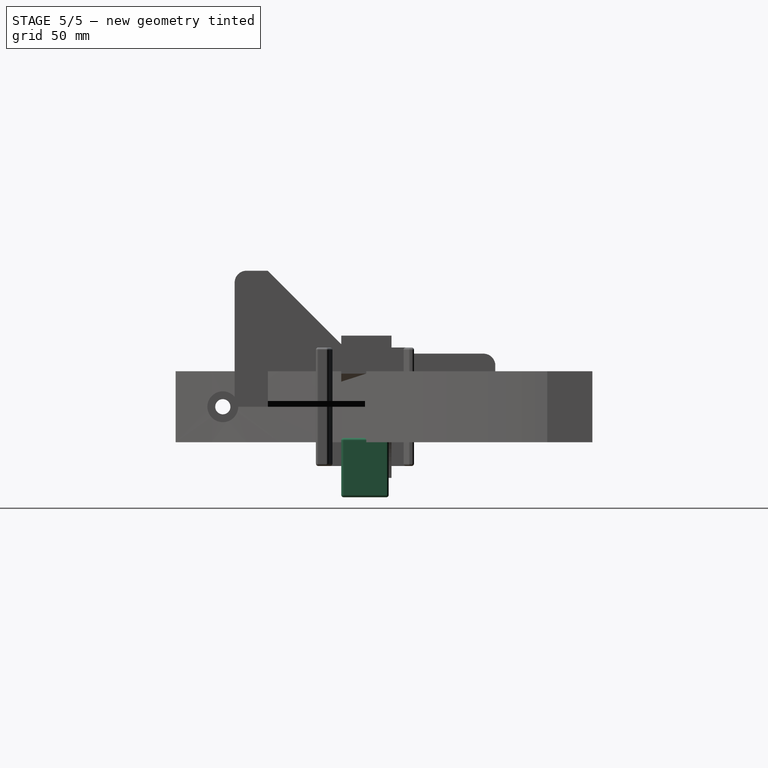
[diagram: stage 5 of 5 — right view after this stage's code; geometry added in this stage tinted green]
FEATURE [PartDesign::Fillet] Fillet
  Base = -> Pocket001 [Face14,Edge24,Edge14,Edge3,Edge1,Edge2,Edge18,Edge8,Edge10,Edge20,Edge36,Edge39]
  BaseFeature = -> Pocket001
  Placement = pos=(0,0,0) rot=(1,0,0;1.5708rad)
  Radius = 1
  SupportTransform = false
FEATURE [PartDesign::Body] Body  label="RouterHolderBottom"
  Group = -> [Sketch,Pad,Sketch001,Pocket,Sketch002,Pocket001,Fillet]
  Origin = -> Origin001
  Placement = pos=(0,-15,0) rot=(0,0,1;0rad)
  Tip = -> Fillet
FEATURE [Sketcher::SketchObject] Sketch003
  FullyConstrained = true
  MapMode = 5
  Placement = pos=(0,0,0) rot=(1,0,0;1.5708rad)
  Support = -> [XZ_Plane002]
  expr: Constraints[33] = .Constraints.HangDown + Sketch002.Constraints.HeadHole + 8mm + 4mm
  expr: Constraints[26] = Sketch.Constraints.WallDistance
  expr: Constraints[25] = Sketch.Constraints.RouterThickness
  sketch-geometry (12):
    g0: LineSegment StartX=5 StartY=-18.2 StartZ=0 EndX=71 EndY=-18.2 EndZ=0
    g1: LineSegment StartX=71 StartY=-18.2 StartZ=0 EndX=71 EndY=-38.2 EndZ=0
    g2: LineSegment StartX=71 StartY=-38.2 StartZ=0 EndX=76 EndY=-38.2 EndZ=0
    g3: LineSegment StartX=76 StartY=-38.2 StartZ=0 EndX=76 EndY=-13.2 EndZ=0
    g4: LineSegment StartX=76 StartY=-13.2 StartZ=0 EndX=10 EndY=-13.2 EndZ=0
    g5: LineSegment StartX=5 StartY=-8.2 StartZ=0 EndX=5 EndY=28.2 EndZ=0
    g6: LineSegment StartX=5 StartY=28.2 StartZ=0 EndX=0 EndY=28.2 EndZ=0
    g7: LineSegment StartX=0 StartY=28.2 StartZ=0 EndX=0 EndY=-28.2 EndZ=0
    g8: LineSegment StartX=0 StartY=-28.2 StartZ=0 EndX=5 EndY=-28.2 EndZ=0
    g9: LineSegment StartX=5 StartY=-28.2 StartZ=0 EndX=5 EndY=-18.2 EndZ=0
    g10: LineSegment StartX=71 StartY=-18.2 StartZ=0 EndX=71 EndY=-13.2 EndZ=0
    g11: ArcOfCircle CenterX=10 CenterY=-8.2 CenterZ=0 NormalX=0 NormalY=0 NormalZ=1 AngleXU=0 Radius=5 StartAngle=3.14159 EndAngle=4.71239
  constraints (34):
    c: Horizontal(g0)
    c: Coincident(g0,g1)
    c: Vertical(g1)
    c: Coincident(g1,g2)
    c: Horizontal(g2)
    c: Coincident(g2,g3)
    c: Vertical(g3)
    c: Coincident(g3,g4)
    c: Horizontal(g4)
    c: Vertical(g5)
    c: Coincident(g5,g6)
    c: Horizontal(g6)
    c: Coincident(g6,g7)
    c: Vertical(g7)
    c: Coincident(g7,g8)
    c: Horizontal(g8)
    c: Coincident(g8,g9)
    c: Vertical(g9)
    c: Coincident(g0,g9)
    c: DistanceY(g2,g0) = 20  'HangDown'
    c: DistanceX(g2,g2) = 5
    c: Coincident(g10,g0)
    c: PointOnObject(g10,g4)
    c: Vertical(g10)
    c: Equal(g10,g2)
    c: DistanceX(g8,g1) = 66
    c: DistanceX(g8,g8) = 5
    c: DistanceY(g8,g0) = 10
    c: Tangent(g4,g11) = 1.5708
    c: Tangent(g5,g11) = 1.5708
    c: Equal(g8,g6)
    c: Radius(g11) = 5
    c: Symmetric(g6,g7,g-1)  '__ANCHOR__'
    c: DistanceY(g5,g6) = 36.4
FEATURE [PartDesign::Pad] Pad001
  AllowMultiFace = false
  Direction = (1,1,1)
  Length = 20
  Length2 = 100
  Midplane = true
  Placement = pos=(0,0,0) rot=(1,0,0;1.5708rad)
  Profile = -> Sketch003
  Type = 0
FEATURE [Sketcher::SketchObject] Sketch004
  ExternalGeometry = -> [Sketch003]
  FullyConstrained = true
  MapMode = 5
  Placement = pos=(0,0,0) rot=(0.57735,0.57735,0.57735;2.0944rad)
  Support = -> [YZ_Plane002]
  expr: .Constraints.ScrewHole = Sketch001.Constraints.ScrewHole
  sketch-geometry (7):
    g0: ArcOfCircle CenterX=1.1e-15 CenterY=22 CenterZ=0 NormalX=0 NormalY=0 NormalZ=1 AngleXU=0 Radius=2.2 StartAngle=0 EndAngle=3.14159
    g1: ArcOfCircle CenterX=1.1e-15 CenterY=-2 CenterZ=0 NormalX=0 NormalY=0 NormalZ=1 AngleXU=0 Radius=2.2 StartAngle=3.14159 EndAngle=6.28319
    g2: LineSegment StartX=-2.2 StartY=22 StartZ=0 EndX=-2.2 EndY=-2 EndZ=0
    g3: LineSegment StartX=2.2 StartY=22 StartZ=0 EndX=2.2 EndY=-2 EndZ=0
    g4: GeomPoint X=1.1e-15 Y=10 Z=0
    g5: LineSegment StartX=1.1e-15 StartY=22 StartZ=0 EndX=1.1e-15 EndY=18 EndZ=0
    g6: LineSegment StartX=1.1e-15 StartY=18 StartZ=0 EndX=1.1e-15 EndY=-2 EndZ=0
  constraints (15):
    c: Tangent(g0,g3) = 1.5708
    c: Tangent(g0,g2) = -1.5708
    c: Tangent(g2,g1) = -1.5708
    c: Tangent(g3,g1) = 1.5708
    c: Vertical(g2)
    c: Equal(g0,g1)
    c: Radius(g0) = 2.2  'ScrewHole'
    c: Symmetric(g0,g1,g4)
    c: Coincident(g5,g0)
    c: Vertical(g5)
    c: Coincident(g6,g5)
    c: Coincident(g6,g1)
    c: DistanceY(g5,g5) = 4
    c: Equal(g6,g-4)
    c: Symmetric(g-3,g-3,g4)
FEATURE [PartDesign::Pocket] Pocket002
  AllowMultiFace = false
  BaseFeature = -> Pad001
  Length = 5
  Length2 = 100
  Placement = pos=(0,0,0) rot=(1,0,0;1.5708rad)
  Profile = -> Sketch004
  Reversed = true
  Type = 1
FEATURE [Sketcher::SketchObject] Sketch005
  AttachmentOffset = pos=(0,0,4) rot=(0,0,1;0rad)
  ExternalGeometry = -> [Sketch004]
  FullyConstrained = true
  MapMode = 5
  Placement = pos=(4,-9e-16,9e-16) rot=(0.57735,0.57735,0.57735;2.0944rad)
  Support = -> [YZ_Plane002]
  expr: Constraints[14] = Sketch002.Constraints.HeadHole
  sketch-geometry (6):
    g0: ArcOfCircle CenterX=7e-16 CenterY=22 CenterZ=0 NormalX=0 NormalY=0 NormalZ=1 AngleXU=0 Radius=4.4 StartAngle=2e-16 EndAngle=3.14159
    g1: ArcOfCircle CenterX=6e-16 CenterY=-2 CenterZ=0 NormalX=0 NormalY=0 NormalZ=1 AngleXU=0 Radius=4.4 StartAngle=3.14159 EndAngle=6.28319
    g2: LineSegment StartX=-4.4 StartY=-2 StartZ=0 EndX=-4.4 EndY=22 EndZ=0
    g3: LineSegment StartX=4.4 StartY=22 StartZ=0 EndX=4.4 EndY=-2 EndZ=0
    g4: LineSegment StartX=-4.4 StartY=-2 StartZ=0 EndX=4.4 EndY=-2 EndZ=0
    g5: LineSegment StartX=-4.4 StartY=22 StartZ=0 EndX=4.4 EndY=22 EndZ=0
  constraints (16):
    c: Coincident(g0,g-3)
    c: Coincident(g2,g0)
    c: Vertical(g2)
    c: Coincident(g3,g0)
    c: Coincident(g4,g1)
    c: Horizontal(g4)
    c: Coincident(g1,g3)
    c: Coincident(g1,g4)
    c: PointOnObject(g1,g4)
    c: Coincident(g2,g1)
    c: Coincident(g5,g0)
    c: Coincident(g5,g0)
    c: Horizontal(g5)
    c: PointOnObject(g0,g5)
    c: Radius(g0) = 4.4
    c: Coincident(g1,g-4)
FEATURE [PartDesign::Pocket] Pocket003
  AllowMultiFace = false
  BaseFeature = -> Pocket002
  Length = 5
  Length2 = 100
  Placement = pos=(0,0,0) rot=(1,0,0;1.5708rad)
  Profile = -> Sketch005
  Reversed = true
  Type = 1
FEATURE [PartDesign::Fillet] Fillet001
  Base = -> Pocket003 [Edge4,Edge21,Edge12,Edge23,Edge14,Edge27,Edge18,Face17,Face10]
  BaseFeature = -> Pocket003
  Placement = pos=(0,0,0) rot=(1,0,0;1.5708rad)
  Radius = 1
  SupportTransform = false
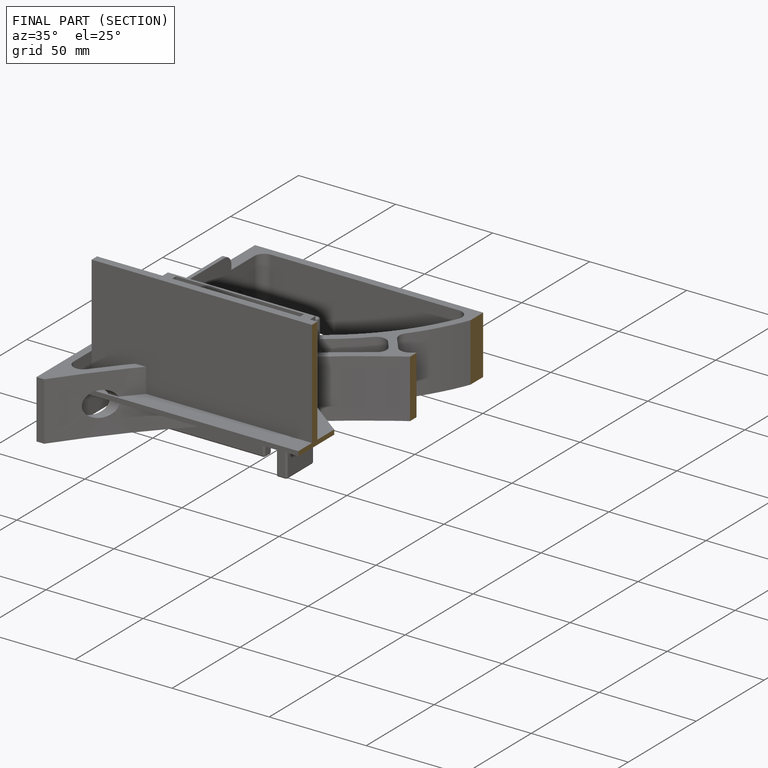
[diagram: finished part — half-section view (interior)]
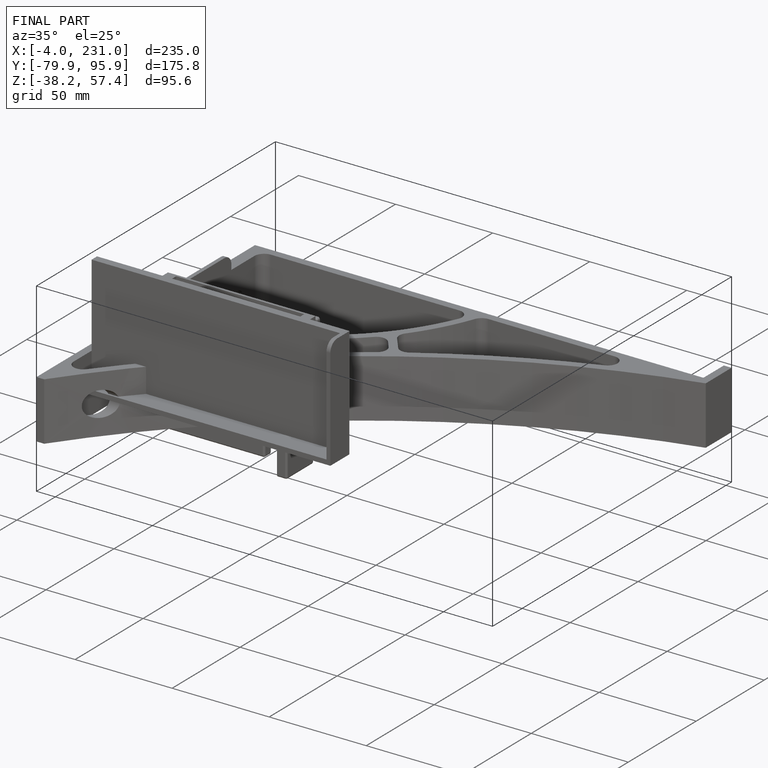
[diagram: finished part — iso view with bounding-box wireframe]
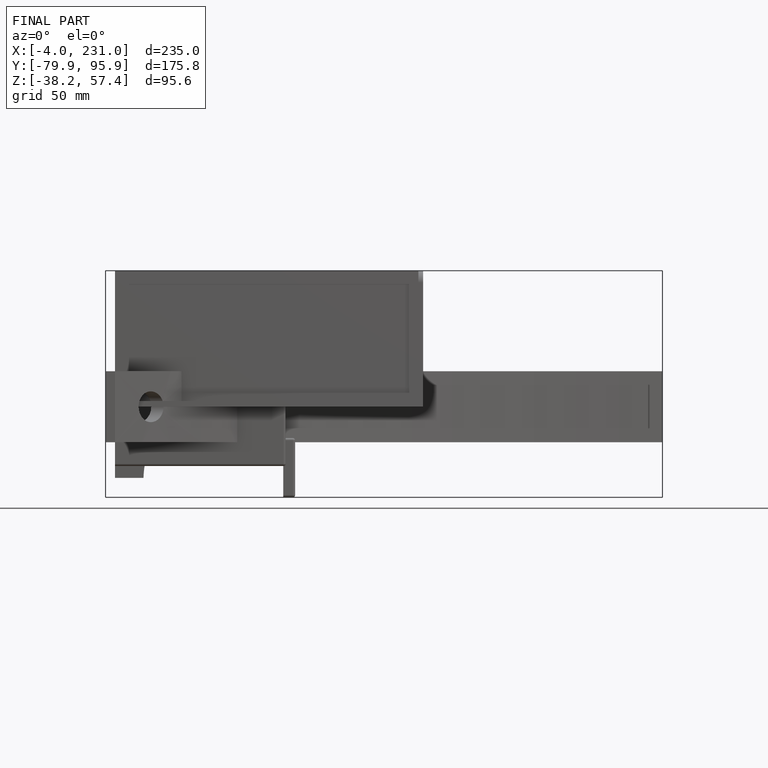
[diagram: finished part — front view with bounding-box wireframe]
